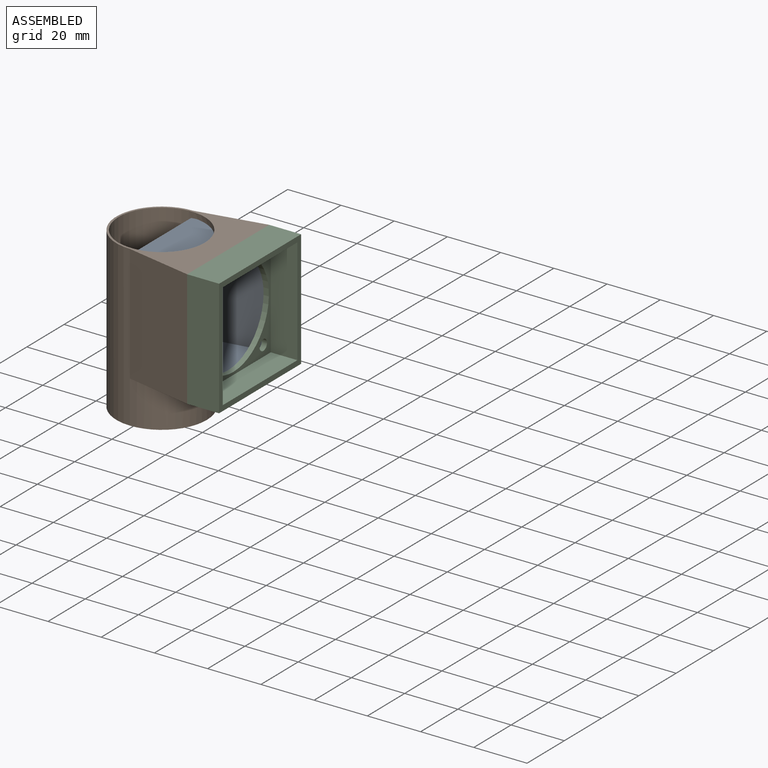
[diagram: assembled view]
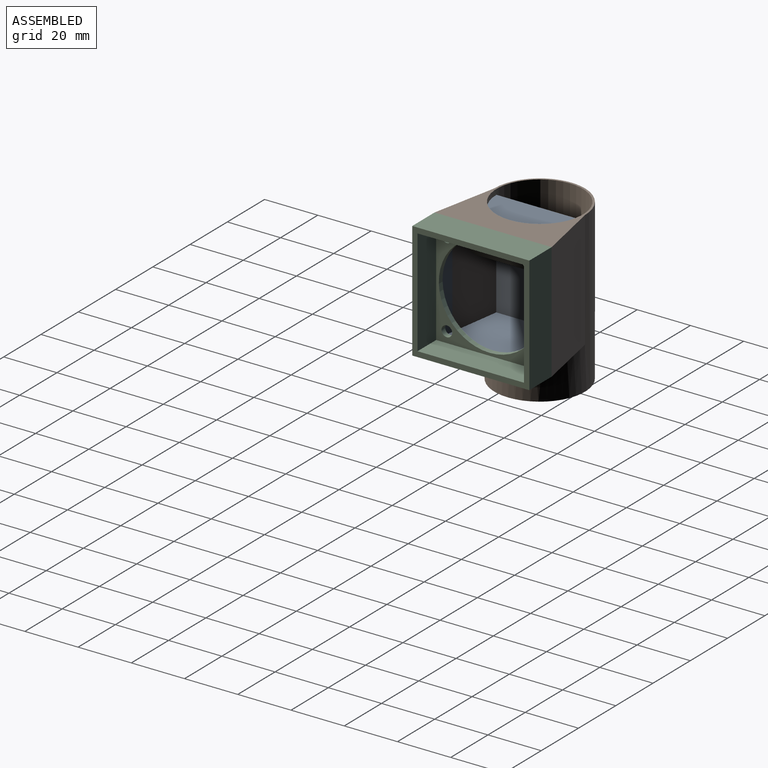
[diagram: assembled view, second angle]
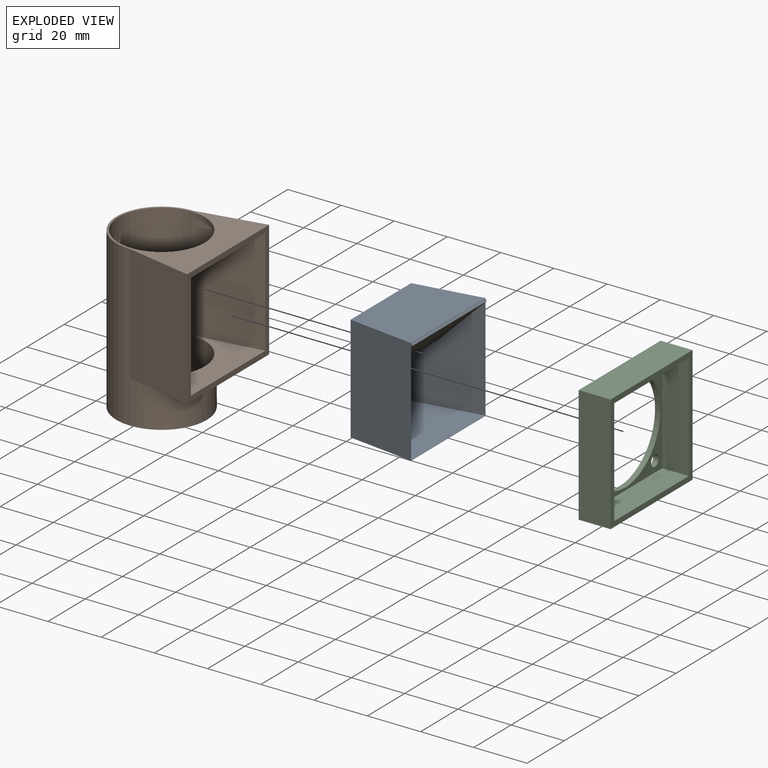
[diagram: exploded view]
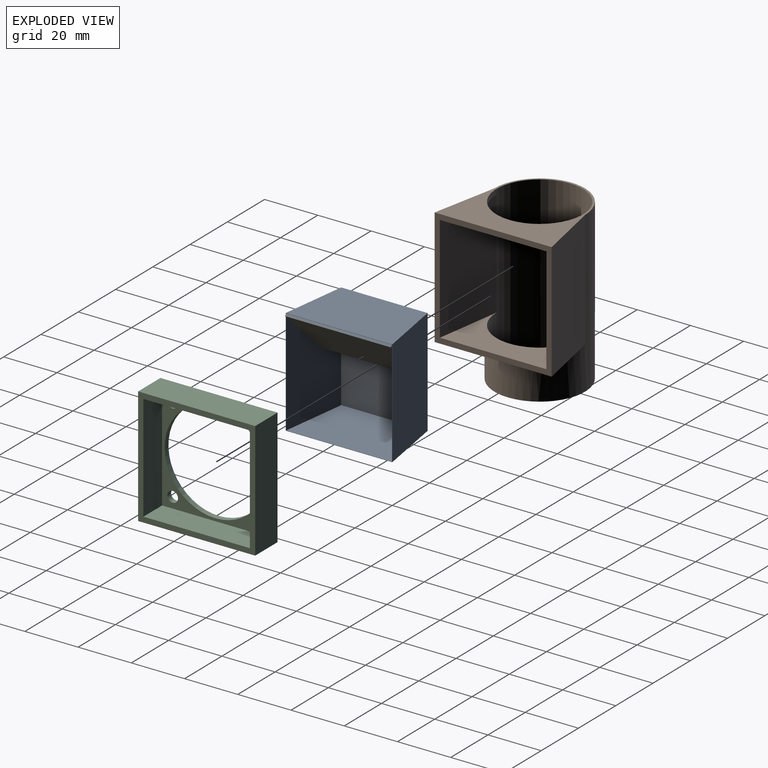
[diagram: exploded view, second angle]
ASSEMBLY  parts=3 mates=2
PART A: 17 faces, bbox 25.6x40x40 mm
  f0: plane 39.8x24.9mm, normal (0.17,-0.99,0), area 1004.5mm2, adj f1,f4,f9,f10,f11,f14,f15
  f1: plane 39.8x24.9mm, normal (0,0,-1), area 897.7mm2, adj f0,f2,f4,f9,f11,f12,f15
  f2: plane 39.8x24.9mm, normal (0.13,0.99,0), area 998.4mm2, adj f1,f4,f9,f10,f12,f13,f14,f15
  f3: plane 40x32.5mm, normal (-1,0,0), area 1300mm2, adj f5,f6,f7,f8
  f4: plane 40x40mm, normal (1,0,0), area 16.1mm2, adj f0,f1,f2,f5,f6,f7,f8,f10
  f5: plane 40x25mm, normal (-0.17,0.99,0), area 1014.1mm2, adj f3,f4,f6,f8
  f6: plane 40x25mm, normal (0,0,1), area 906.3mm2, adj f3,f4,f5,f7
  f7: plane 40x25mm, normal (-0.13,-0.99,0), area 1008.6mm2, adj f3,f4,f6,f8
  f8: plane 40x25mm, normal (0,0,-1), area 906.3mm2, adj f3,f4,f5,f7
  f9: plane 39.8x32.33mm, normal (1,0,0), area 1286.6mm2, adj f0,f1,f2,f10
  f10: plane 39.8x24.9mm, normal (0,0,1), area 898mm2, adj f0,f2,f4,f9
  f11: plane 17.19x17.18mm, normal (-0.08,0.99,-0.08), area 23mm2, adj f0,f1,f12,f14,f16
  f12: plane 39.78x0.73mm, normal (0.71,0,0.71), area 39.6mm2, adj f1,f2,f11,f13,f15,f16
  f13: plane 17.17x17.12mm, normal (-0.07,-1,-0.07), area 22.2mm2, adj f2,f12,f14,f16
  f14: plane 34.83x0.71mm, normal (-0.71,0,-0.71), area 34.8mm2, adj f0,f2,f11,f13,f15,f16
  f15: plane 39.77x16.48mm, normal (-0.71,0,0.71), area 869.2mm2, adj f0,f1,f2,f12,f14
  f16: plane 39.78x16.5mm, normal (0.71,0,-0.71), area 869.6mm2, adj f11,f12,f13,f14
PART B: 12 faces, bbox 42x44x60 mm
  f0: cylinder r=17mm len=60mm, axis (0,0,-1), area 4058.9mm2, adj f1,f2,f4,f5,f6
  f1: plane 44x42mm, normal (0,0,1), area 599.4mm2, adj f0,f3,f5,f6,f11
  f2: plane 34x34mm, normal (0,0,-1), area 78.3mm2, adj f0,f11
  f3: plane 44x44mm, normal (1,0,0), area 336mm2, adj f1,f4,f5,f6,f7,f8,f9,f10
  f4: plane 44x25mm, normal (0,0,-1), area 521mm2, adj f0,f3,f5,f6
  f5: plane 44x25mm, normal (-0.2,-0.98,0), area 1121.8mm2, adj f0,f1,f3,f4
  f6: plane 44x25mm, normal (-0.2,0.98,0), area 1121.8mm2, adj f0,f1,f3,f4
  f7: plane 40x25mm, normal (0.15,-0.99,0), area 1011.2mm2, adj f3,f8,f10,f11
  f8: plane 40x25mm, normal (0,0,-1), area 491.5mm2, adj f3,f7,f9,f11
  f9: plane 40x25mm, normal (0.15,0.99,0), area 1011.2mm2, adj f3,f8,f10,f11
  f10: plane 40x25mm, normal (0,0,1), area 491.5mm2, adj f3,f7,f9,f11
  f11: cylinder r=16.25mm len=60mm, axis (0,0,-1), area 4084.1mm2, adj f1,f2,f7,f8,f9,f10
PART C: 16 faces, bbox 12x44x44 mm
  f0: plane 40x40mm, normal (1,0,0), area 415.6mm2, adj f6,f7,f8,f9,f10,f11,f12,f13
  f1: plane 44x12mm, normal (0,0,-1), area 528mm2, adj f2,f4,f5,f15
  f2: plane 44x12mm, normal (0,1,0), area 528mm2, adj f1,f3,f5,f15
  f3: plane 44x12mm, normal (0,0,1), area 528mm2, adj f2,f4,f5,f15
  f4: plane 44x12mm, normal (0,-1,0), area 528mm2, adj f1,f3,f5,f15
  f5: plane 44x44mm, normal (-1,0,0), area 751.6mm2, adj f1,f2,f3,f4,f6,f7,f8,f9
  f6: cylinder r=2mm len=4mm, axis (1,0,0), area 25.1mm2, adj f0,f5
  f7: cylinder r=2mm len=4mm, axis (1,0,0), area 25.1mm2, adj f0,f5
  f8: cylinder r=2mm len=4mm, axis (1,0,0), area 25.1mm2, adj f0,f5
  f9: cylinder r=2mm len=4mm, axis (1,0,0), area 25.1mm2, adj f0,f5
  f10: cylinder r=19mm len=38mm, axis (1,0,0), area 238.8mm2, adj f0,f5
  f11: plane 40x10mm, normal (0,0,-1), area 400mm2, adj f0,f12,f14,f15
  f12: plane 40x10mm, normal (0,-1,0), area 400mm2, adj f0,f11,f13,f15
  f13: plane 40x10mm, normal (0,0,1), area 400mm2, adj f0,f12,f14,f15
  f14: plane 40x10mm, normal (0,1,0), area 400mm2, adj f0,f11,f13,f15
  f15: plane 44x44mm, normal (1,0,0), area 336mm2, adj f1,f2,f3,f4,f11,f12,f13,f14
PLACE A t=(-59.41,95.5,28.55)mm
PLACE B t=(-59.41,5.82,-12.97)mm
PLACE C t=(-34.41,95.99,-40.61)mm
MATE fastened C.f5 <-> B.f3  axis (-1,0,0) through (-34.41,-16.18,17.03)mm
MATE fastened A.f4 <-> B.f3  axis (1,0,0) through (-34.41,-14.18,15.03)mm
